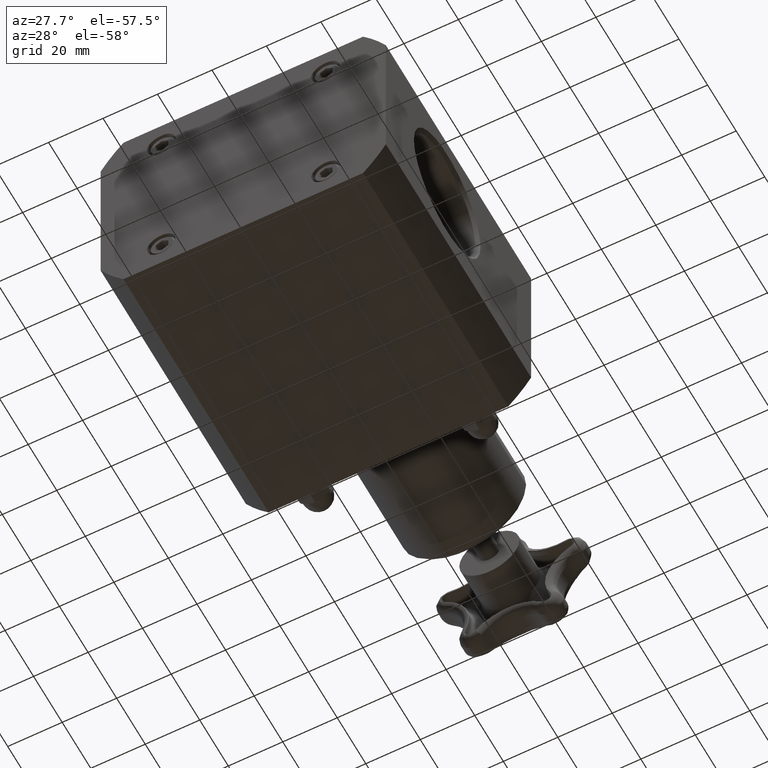
[diagram: clean part render]
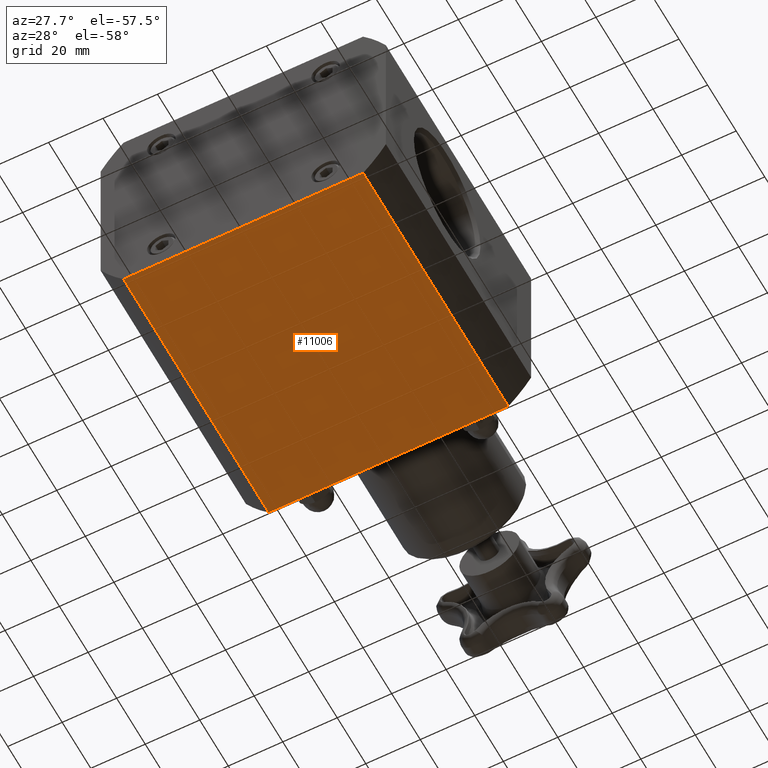
[diagram: same view with one face highlighted and labeled with its STEP entity id]
A machine part, auxiliary view. The second image highlights one B-rep face of the part: STEP entity #11006.
In plain terms, the highlighted planar face has unit normal (0, 0, -1).
Its self-contained STEP definition (entity closure, byte-faithful):
#10948=CARTESIAN_POINT('',(-1.732050807568877,0.0,-1.625000000000000));
#10949=VERTEX_POINT('',#10948);
#10950=CARTESIAN_POINT('',(-1.732050807568877,4.000000000000001,-1.625000000000000));
#10951=VERTEX_POINT('',#10950);
#10952=CARTESIAN_POINT('',(-1.732050807568877,0.0,-1.625000000000000));
#10953=DIRECTION('',(0.0,1.0,0.0));
#10954=VECTOR('',#10953,4.000000000000001);
#10955=LINE('',#10952,#10954);
#10956=EDGE_CURVE('',#10949,#10951,#10955,.T.);
#10976=CARTESIAN_POINT('',(-1.732050807568877,0.0,-1.625000000000000));
#10977=DIRECTION('',(0.0,0.0,-1.0));
#10978=DIRECTION('',(-1.0,0.0,0.0));
#10979=AXIS2_PLACEMENT_3D('',#10976,#10977,#10978);
#10980=PLANE('',#10979);
#10981=CARTESIAN_POINT('',(1.732050807568881,0.0,-1.625000000000000));
#10982=VERTEX_POINT('',#10981);
#10983=CARTESIAN_POINT('',(1.732050807568877,4.000000000000001,-1.625000000000000));
#10984=VERTEX_POINT('',#10983);
#10985=CARTESIAN_POINT('',(1.732050807568881,0.0,-1.625000000000000));
#10986=DIRECTION('',(0.0,1.0,0.0));
#10987=VECTOR('',#10986,4.000000000000001);
#10988=LINE('',#10985,#10987);
#10989=EDGE_CURVE('',#10982,#10984,#10988,.T.);
#10990=ORIENTED_EDGE('',*,*,#10989,.F.);
#10991=CARTESIAN_POINT('',(-1.732050807568877,0.0,-1.625000000000000));
#10992=DIRECTION('',(1.0,0.0,0.0));
#10993=VECTOR('',#10992,3.464101615137758);
#10994=LINE('',#10991,#10993);
#10995=EDGE_CURVE('',#10949,#10982,#10994,.T.);
#10996=ORIENTED_EDGE('',*,*,#10995,.F.);
#10997=ORIENTED_EDGE('',*,*,#10956,.T.);
#10998=CARTESIAN_POINT('',(-1.732050807568877,4.000000000000001,-1.625000000000000));
#10999=DIRECTION('',(1.0,0.0,0.0));
#11000=VECTOR('',#10999,3.464101615137755);
#11001=LINE('',#10998,#11000);
#11002=EDGE_CURVE('',#10951,#10984,#11001,.T.);
#11003=ORIENTED_EDGE('',*,*,#11002,.T.);
#11004=EDGE_LOOP('',(#10990,#10996,#10997,#11003));
#11005=FACE_OUTER_BOUND('',#11004,.T.);
#11006=ADVANCED_FACE('',(#11005),#10980,.T.);